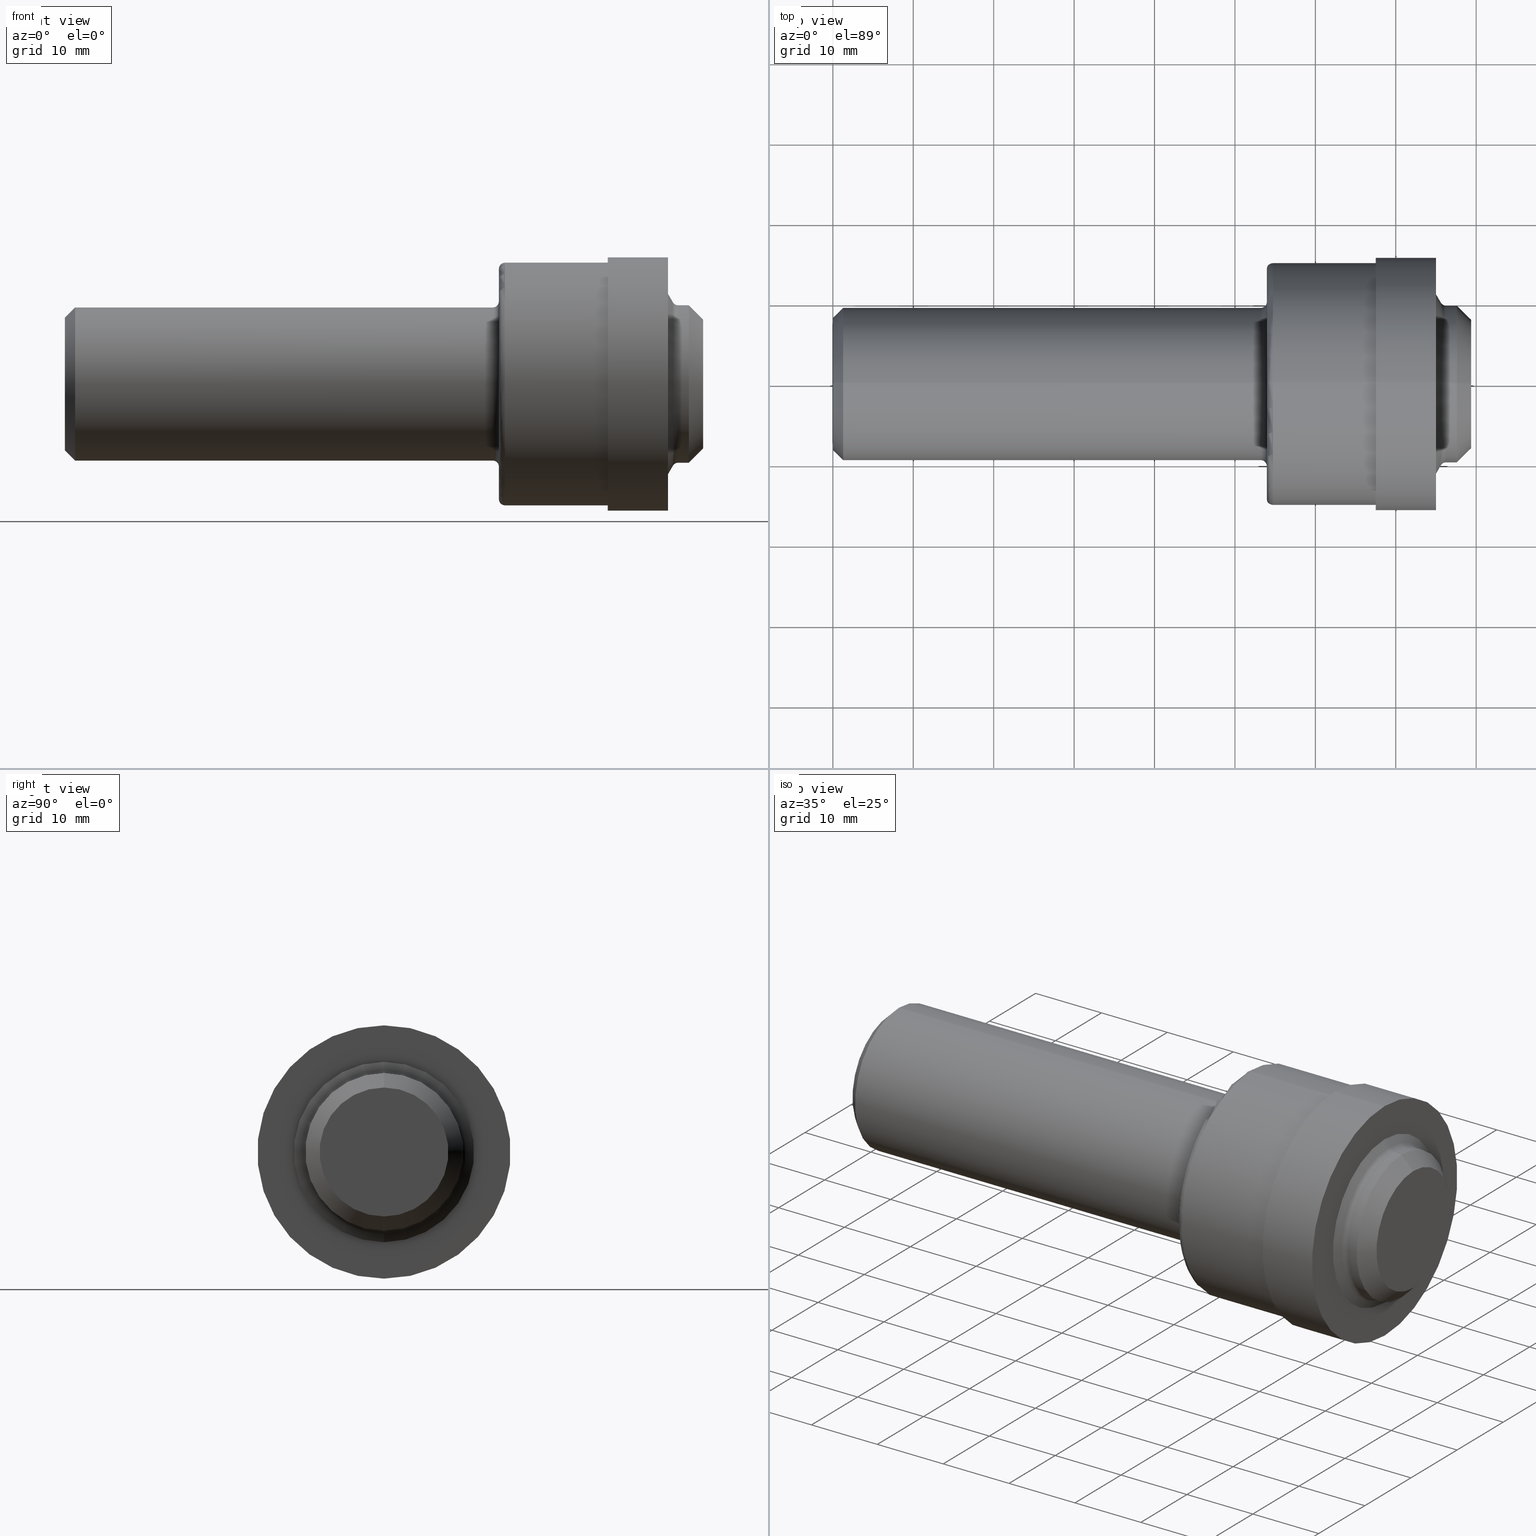
[diagram: canonical four-view strip — front | top / right | iso, engineering-drawing reading convention]
A machine part, canonical four-view strip (front | top / right | iso — engineering-drawing reading convention). The complete STEP part file that produces these views, byte-faithful:
ISO-10303-21;
HEADER;
FILE_DESCRIPTION (( 'STEP AP214' ),
    '1' );
FILE_NAME ('AS5202-08X.STEP',
    '2023-11-10T18:26:39',
    ( '' ),
    ( '' ),
    'SwSTEP 2.0',
    'SolidWorks 2022',
    '' );
FILE_SCHEMA (( 'AUTOMOTIVE_DESIGN' ));
ENDSEC;

DATA;
#1 = DIRECTION ( 'NONE',  ( 0.000000000000000000, 0.000000000000000000, 1.000000000000000000 ) ) ;
#2 = ADVANCED_FACE ( 'NONE', ( #682 ), #261, .T. ) ;
#3 = FACE_OUTER_BOUND ( 'NONE', #114, .T. ) ;
#4 = EDGE_LOOP ( 'NONE', ( #379, #194, #202, #406 ) ) ;
#5 = DIRECTION ( 'NONE',  ( 0.000000000000000000, 0.000000000000000000, 1.000000000000000000 ) ) ;
#6 = CONICAL_SURFACE ( 'NONE', #242, 0.3748500000000000165, 0.7853981633974463916 ) ;
#7 = DIRECTION ( 'NONE',  ( 0.000000000000000000, 0.000000000000000000, 1.000000000000000000 ) ) ;
#8 = DIRECTION ( 'NONE',  ( 1.000000000000000000, 0.000000000000000000, 0.000000000000000000 ) ) ;
#9 = ORIENTED_EDGE ( 'NONE', *, *, #80, .F. ) ;
#10 = DIRECTION ( 'NONE',  ( 0.000000000000000000, 0.000000000000000000, 1.000000000000000000 ) ) ;
#11 = CIRCLE ( 'NONE', #496, 0.02900000000000022352 ) ;
#12 = ADVANCED_FACE ( 'NONE', ( #531 ), #340, .T. ) ;
#13 = DIRECTION ( 'NONE',  ( 1.000000000000000000, 0.000000000000000000, 0.000000000000000000 ) ) ;
#14 = CARTESIAN_POINT ( 'NONE',  ( 2.125000000000000000, 7.090704967063174160E-17, -0.5639999999999999458 ) ) ;
#15 = VERTEX_POINT ( 'NONE', #163 ) ;
#16 = FACE_OUTER_BOUND ( 'NONE', #423, .T. ) ;
#17 = AXIS2_PLACEMENT_3D ( 'NONE', #394, #274, #339 ) ;
#18 = FACE_OUTER_BOUND ( 'NONE', #572, .T. ) ;
#19 = CIRCLE ( 'NONE', #643, 0.4048500000000000432 ) ;
#20 = SURFACE_STYLE_USAGE ( .BOTH. , #192 ) ;
#21 = VERTEX_POINT ( 'NONE', #578 ) ;
#22 = EDGE_CURVE ( 'NONE', #56, #30, #534, .T. ) ;
#23 = VERTEX_POINT ( 'NONE', #107 ) ;
#24 = ORIENTED_EDGE ( 'NONE', *, *, #289, .T. ) ;
#25 = AXIS2_PLACEMENT_3D ( 'NONE', #684, #272, #481 ) ;
#26 = DIRECTION ( 'NONE',  ( 0.000000000000000000, 0.000000000000000000, 1.000000000000000000 ) ) ;
#27 = ORIENTED_EDGE ( 'NONE', *, *, #657, .T. ) ;
#28 = AXIS2_PLACEMENT_3D ( 'NONE', #51, #494, #383 ) ;
#29 = CARTESIAN_POINT ( 'NONE',  ( 2.657999999999999918, 0.000000000000000000, 0.000000000000000000 ) ) ;
#30 = VERTEX_POINT ( 'NONE', #332 ) ;
#31 = CARTESIAN_POINT ( 'NONE',  ( 0.000000000000000000, 0.000000000000000000, 0.000000000000000000 ) ) ;
#32 = EDGE_LOOP ( 'NONE', ( #97, #79, #24, #44 ) ) ;
#33 = STYLED_ITEM ( 'NONE', ( #243 ), #482 ) ;
#34 = DIRECTION ( 'NONE',  ( 0.000000000000000000, 0.000000000000000000, -1.000000000000000000 ) ) ;
#35 = ORIENTED_EDGE ( 'NONE', *, *, #554, .T. ) ;
#36 = PRODUCT_DEFINITION_FORMATION_WITH_SPECIFIED_SOURCE ( 'ANY', '', #532, .NOT_KNOWN. ) ;
#37 = ADVANCED_FACE ( 'NONE', ( #170 ), #182, .T. ) ;
#38 = DIRECTION ( 'NONE',  ( 1.000000000000000000, 0.000000000000000000, 0.000000000000000000 ) ) ;
#39 = ORIENTED_EDGE ( 'NONE', *, *, #178, .F. ) ;
#40 = DIRECTION ( 'NONE',  ( 0.000000000000000000, 0.000000000000000000, 1.000000000000000000 ) ) ;
#41 = FACE_OUTER_BOUND ( 'NONE', #538, .T. ) ;
#42 = CARTESIAN_POINT ( 'NONE',  ( 2.154999999999999805, 0.000000000000000000, 0.000000000000000000 ) ) ;
#43 = CARTESIAN_POINT ( 'NONE',  ( 0.05000000000000000278, 0.000000000000000000, 0.000000000000000000 ) ) ;
#44 = ORIENTED_EDGE ( 'NONE', *, *, #69, .T. ) ;
#45 = CIRCLE ( 'NONE', #295, 0.3248500000000002497 ) ;
#46 = CARTESIAN_POINT ( 'NONE',  ( 2.094999999999999751, 0.000000000000000000, 0.4048500000000000432 ) ) ;
#47 = EDGE_CURVE ( 'NONE', #457, #152, #450, .T. ) ;
#48 = ORIENTED_EDGE ( 'NONE', *, *, #354, .F. ) ;
#49 = CIRCLE ( 'NONE', #146, 0.3748500000000000165 ) ;
#50 = FACE_BOUND ( 'NONE', #89, .T. ) ;
#51 = CARTESIAN_POINT ( 'NONE',  ( 2.094999999999999751, 0.000000000000000000, 0.000000000000000000 ) ) ;
#52 = VERTEX_POINT ( 'NONE', #546 ) ;
#53 = FACE_OUTER_BOUND ( 'NONE', #454, .T. ) ;
#54 = DIRECTION ( 'NONE',  ( -1.000000000000000000, -0.000000000000000000, -0.000000000000000000 ) ) ;
#55 = DIRECTION ( 'NONE',  ( 0.000000000000000000, 0.000000000000000000, 1.000000000000000000 ) ) ;
#56 = VERTEX_POINT ( 'NONE', #446 ) ;
#57 = DIRECTION ( 'NONE',  ( 0.000000000000000000, -1.000000000000000000, 0.000000000000000000 ) ) ;
#58 =( GEOMETRIC_REPRESENTATION_CONTEXT ( 3 ) GLOBAL_UNCERTAINTY_ASSIGNED_CONTEXT ( ( #315 ) ) GLOBAL_UNIT_ASSIGNED_CONTEXT ( ( #82, #293, #518 ) ) REPRESENTATION_CONTEXT ( 'NONE', 'WORKASPACE' ) );
#59 = AXIS2_PLACEMENT_3D ( 'NONE', #645, #8, #123 ) ;
#60 = DIRECTION ( 'NONE',  ( 0.000000000000000000, 0.000000000000000000, 1.000000000000000000 ) ) ;
#61 = ORIENTED_EDGE ( 'NONE', *, *, #461, .T. ) ;
#62 = CARTESIAN_POINT ( 'NONE',  ( 2.125000000000000000, 0.000000000000000000, 0.000000000000000000 ) ) ;
#63 = DIRECTION ( 'NONE',  ( -1.000000000000000000, -0.000000000000000000, -0.000000000000000000 ) ) ;
#64 = LINE ( 'NONE', #588, #470 ) ;
#65 = ORIENTED_EDGE ( 'NONE', *, *, #640, .F. ) ;
#66 = DIRECTION ( 'NONE',  ( 0.000000000000000000, 0.000000000000000000, 1.000000000000000000 ) ) ;
#67 = DIRECTION ( 'NONE',  ( 0.000000000000000000, 0.000000000000000000, 1.000000000000000000 ) ) ;
#68 = ORIENTED_EDGE ( 'NONE', *, *, #181, .T. ) ;
#69 = EDGE_CURVE ( 'NONE', #140, #525, #644, .T. ) ;
#70 = COLOUR_RGB ( '',0.7529411764705882248, 0.7529411764705882248, 0.7529411764705882248 ) ;
#71 = DIRECTION ( 'NONE',  ( -0.000000000000000000, 0.000000000000000000, 1.000000000000000000 ) ) ;
#72 = EDGE_CURVE ( 'NONE', #148, #23, #668, .T. ) ;
#73 = ORIENTED_EDGE ( 'NONE', *, *, #403, .F. ) ;
#74 = CARTESIAN_POINT ( 'NONE',  ( 2.657999999999999918, 0.000000000000000000, 0.6199999999999999956 ) ) ;
#75 = STYLED_ITEM ( 'NONE', ( #412 ), #245 ) ;
#76 = ORIENTED_EDGE ( 'NONE', *, *, #341, .T. ) ;
#77 = ADVANCED_FACE ( 'NONE', ( #3 ), #121, .T. ) ;
#78 = FACE_BOUND ( 'NONE', #241, .T. ) ;
#79 = ORIENTED_EDGE ( 'NONE', *, *, #72, .F. ) ;
#80 = EDGE_CURVE ( 'NONE', #664, #459, #106, .T. ) ;
#81 = VECTOR ( 'NONE', #116, 39.37007874015748143 ) ;
#82 =( CONVERSION_BASED_UNIT ( 'INCH', #561 ) LENGTH_UNIT ( ) NAMED_UNIT ( #269 ) );
#83 = VERTEX_POINT ( 'NONE', #399 ) ;
#84 = CIRCLE ( 'NONE', #189, 0.3855999999999999983 ) ;
#85 = APPLICATION_CONTEXT ( 'automotive_design' ) ;
#86 = PRODUCT_CONTEXT ( 'NONE', #430, 'mechanical' ) ;
#87 = VERTEX_POINT ( 'NONE', #442 ) ;
#88 = DIRECTION ( 'NONE',  ( -1.000000000000000000, -0.000000000000000000, -0.000000000000000000 ) ) ;
#89 = EDGE_LOOP ( 'NONE', ( #371, #512 ) ) ;
#90 = SURFACE_STYLE_FILL_AREA ( #259 ) ;
#91 = CIRCLE ( 'NONE', #675, 0.4000999999999999002 ) ;
#92 = CARTESIAN_POINT ( 'NONE',  ( 2.657999999999999918, 0.000000000000000000, 0.000000000000000000 ) ) ;
#93 = ORIENTED_EDGE ( 'NONE', *, *, #279, .T. ) ;
#94 = CLOSED_SHELL ( 'NONE', ( #449, #100, #128, #77, #522, #586, #12, #654, #530, #137, #673, #693, #377, #258, #149, #619, #164, #683, #381, #2, #327, #609, #37, #663, #115 ) ) ;
#95 =( NAMED_UNIT ( * ) PLANE_ANGLE_UNIT ( ) SI_UNIT ( $, .RADIAN. ) );
#96 = CYLINDRICAL_SURFACE ( 'NONE', #155, 0.5939999999999999725 ) ;
#97 = ORIENTED_EDGE ( 'NONE', *, *, #392, .F. ) ;
#98 = AXIS2_PLACEMENT_3D ( 'NONE', #519, #606, #460 ) ;
#99 = DIRECTION ( 'NONE',  ( 0.000000000000000000, 0.000000000000000000, 1.000000000000000000 ) ) ;
#100 = ADVANCED_FACE ( 'NONE', ( #658 ), #592, .T. ) ;
#101 = DIRECTION ( 'NONE',  ( -1.000000000000000000, -0.000000000000000000, -0.000000000000000000 ) ) ;
#102 = VERTEX_POINT ( 'NONE', #336 ) ;
#103 = CARTESIAN_POINT ( 'NONE',  ( 2.154999999999999805, 0.000000000000000000, 0.5939999999999999725 ) ) ;
#104 = EDGE_CURVE ( 'NONE', #400, #388, #443, .T. ) ;
#105 = ORIENTED_EDGE ( 'NONE', *, *, #630, .F. ) ;
#106 = CIRCLE ( 'NONE', #350, 0.02900000000000022352 ) ;
#107 = CARTESIAN_POINT ( 'NONE',  ( 2.094999999999999751, 4.774285546475956938E-17, -0.3748500000000000165 ) ) ;
#108 = ORIENTED_EDGE ( 'NONE', *, *, #568, .T. ) ;
#109 = DIRECTION ( 'NONE',  ( 0.000000000000000000, 0.000000000000000000, 1.000000000000000000 ) ) ;
#110 = AXIS2_PLACEMENT_3D ( 'NONE', #629, #478, #153 ) ;
#111 = DIRECTION ( 'NONE',  ( -1.000000000000000000, -0.000000000000000000, -0.000000000000000000 ) ) ;
#112 = DIRECTION ( 'NONE',  ( 0.000000000000000000, 0.000000000000000000, 1.000000000000000000 ) ) ;
#113 = EDGE_CURVE ( 'NONE', #21, #664, #678, .T. ) ;
#114 = EDGE_LOOP ( 'NONE', ( #364, #614, #589, #324 ) ) ;
#115 = ADVANCED_FACE ( 'NONE', ( #490 ), #226, .F. ) ;
#116 = DIRECTION ( 'NONE',  ( -1.000000000000000000, -0.000000000000000000, -0.000000000000000000 ) ) ;
#117 = CARTESIAN_POINT ( 'NONE',  ( 0.000000000000000000, 0.000000000000000000, 0.000000000000000000 ) ) ;
#118 = EDGE_LOOP ( 'NONE', ( #298, #603, #570, #183 ) ) ;
#119 = EDGE_CURVE ( 'NONE', #208, #144, #64, .T. ) ;
#120 = CARTESIAN_POINT ( 'NONE',  ( 2.154999999999999805, 7.274401986935277967E-17, -0.5939999999999999725 ) ) ;
#121 = TOROIDAL_SURFACE ( 'NONE', #413, 0.5639999999999999458, 0.02999999999999998848 ) ;
#122 = DIRECTION ( 'NONE',  ( -1.000000000000000000, -0.000000000000000000, -0.000000000000000000 ) ) ;
#123 = DIRECTION ( 'NONE',  ( 0.000000000000000000, 0.000000000000000000, -1.000000000000000000 ) ) ;
#124 = AXIS2_PLACEMENT_3D ( 'NONE', #46, #57, #590 ) ;
#125 = SURFACE_STYLE_FILL_AREA ( #660 ) ;
#126 = CARTESIAN_POINT ( 'NONE',  ( 0.05000000000000000278, 0.000000000000000000, 0.3748500000000000165 ) ) ;
#127 = ORIENTED_EDGE ( 'NONE', *, *, #422, .T. ) ;
#128 = ADVANCED_FACE ( 'NONE', ( #502 ), #173, .F. ) ;
#129 =( NAMED_UNIT ( * ) PLANE_ANGLE_UNIT ( ) SI_UNIT ( $, .RADIAN. ) );
#130 = VERTEX_POINT ( 'NONE', #14 ) ;
#131 = PRODUCT_RELATED_PRODUCT_CATEGORY ( 'part', '', ( #532 ) ) ;
#132 = MECHANICAL_DESIGN_GEOMETRIC_PRESENTATION_REPRESENTATION (  '', ( #33 ), #271 ) ;
#133 = DIRECTION ( 'NONE',  ( -1.000000000000000000, 0.000000000000000000, -0.000000000000000000 ) ) ;
#134 = ORIENTED_EDGE ( 'NONE', *, *, #437, .F. ) ;
#135 = DIRECTION ( 'NONE',  ( 0.000000000000000000, 0.000000000000000000, -1.000000000000000000 ) ) ;
#136 = EDGE_LOOP ( 'NONE', ( #265, #108, #679, #105 ) ) ;
#137 = ADVANCED_FACE ( 'NONE', ( #18 ), #551, .T. ) ;
#138 = DIRECTION ( 'NONE',  ( -1.000000000000000000, -0.000000000000000000, -0.000000000000000000 ) ) ;
#139 = CIRCLE ( 'NONE', #17, 0.02999999999999995379 ) ;
#140 = VERTEX_POINT ( 'NONE', #600 ) ;
#141 = AXIS2_PLACEMENT_3D ( 'NONE', #436, #591, #542 ) ;
#142 = CARTESIAN_POINT ( 'NONE',  ( 0.000000000000000000, 0.000000000000000000, 0.000000000000000000 ) ) ;
#143 = CARTESIAN_POINT ( 'NONE',  ( 3.055000000000000160, 0.000000000000000000, 0.3855999999999999983 ) ) ;
#144 = VERTEX_POINT ( 'NONE', #126 ) ;
#145 = APPLICATION_PROTOCOL_DEFINITION ( 'draft international standard', 'automotive_design', 1998, #85 ) ;
#146 = AXIS2_PLACEMENT_3D ( 'NONE', #585, #579, #10 ) ;
#147 = DIRECTION ( 'NONE',  ( -1.000000000000000000, -0.000000000000000000, -0.000000000000000000 ) ) ;
#148 = VERTEX_POINT ( 'NONE', #345 ) ;
#149 = ADVANCED_FACE ( 'NONE', ( #555 ), #219, .T. ) ;
#150 = DIRECTION ( 'NONE',  ( 0.000000000000000000, 0.000000000000000000, 1.000000000000000000 ) ) ;
#151 = DIRECTION ( 'NONE',  ( 0.000000000000000000, 0.000000000000000000, 1.000000000000000000 ) ) ;
#152 = VERTEX_POINT ( 'NONE', #402 ) ;
#153 = DIRECTION ( 'NONE',  ( 0.000000000000000000, 0.000000000000000000, 1.000000000000000000 ) ) ;
#154 = UNCERTAINTY_MEASURE_WITH_UNIT (LENGTH_MEASURE( 1.000000000000000082E-05 ), #455, 'distance_accuracy_value', 'NONE');
#155 = AXIS2_PLACEMENT_3D ( 'NONE', #577, #101, #151 ) ;
#156 = LINE ( 'NONE', #216, #250 ) ;
#157 = ORIENTED_EDGE ( 'NONE', *, *, #224, .T. ) ;
#158 = AXIS2_PLACEMENT_3D ( 'NONE', #397, #233, #67 ) ;
#159 = CIRCLE ( 'NONE', #631, 0.5939999999999999725 ) ;
#160 = EDGE_CURVE ( 'NONE', #388, #130, #541, .T. ) ;
#161 = CARTESIAN_POINT ( 'NONE',  ( 0.000000000000000000, 0.000000000000000000, 0.000000000000000000 ) ) ;
#162 = DIRECTION ( 'NONE',  ( -1.000000000000000000, -0.000000000000000000, -0.000000000000000000 ) ) ;
#163 = CARTESIAN_POINT ( 'NONE',  ( 2.952999999999999847, 0.000000000000000000, 0.4415000000000000036 ) ) ;
#164 = ADVANCED_FACE ( 'NONE', ( #199 ), #612, .T. ) ;
#165 = CARTESIAN_POINT ( 'NONE',  ( 2.976902301144449758, 4.899811843388558823E-17, -0.4000999999999999002 ) ) ;
#166 = DIRECTION ( 'NONE',  ( -1.000000000000000000, -0.000000000000000000, -0.000000000000000000 ) ) ;
#167 = ORIENTED_EDGE ( 'NONE', *, *, #483, .F. ) ;
#168 = LINE ( 'NONE', #380, #464 ) ;
#169 = FACE_OUTER_BOUND ( 'NONE', #523, .T. ) ;
#170 = FACE_OUTER_BOUND ( 'NONE', #300, .T. ) ;
#171 = AXIS2_PLACEMENT_3D ( 'NONE', #448, #166, #445 ) ;
#172 = CARTESIAN_POINT ( 'NONE',  ( 0.000000000000000000, 0.000000000000000000, 0.000000000000000000 ) ) ;
#173 = TOROIDAL_SURFACE ( 'NONE', #312, 0.4048500000000000432, 0.02999999999999998848 ) ;
#174 = FACE_OUTER_BOUND ( 'NONE', #32, .T. ) ;
#175 = DIRECTION ( 'NONE',  ( 0.000000000000000000, 0.000000000000000000, 1.000000000000000000 ) ) ;
#176 = EDGE_LOOP ( 'NONE', ( #427, #307, #27, #670 ) ) ;
#177 = DIRECTION ( 'NONE',  ( 0.000000000000000000, 0.000000000000000000, -1.000000000000000000 ) ) ;
#178 = EDGE_CURVE ( 'NONE', #633, #87, #623, .T. ) ;
#179 = AXIS2_PLACEMENT_3D ( 'NONE', #142, #310, #99 ) ;
#180 = LINE ( 'NONE', #655, #515 ) ;
#181 = EDGE_CURVE ( 'NONE', #56, #198, #318, .T. ) ;
#182 = CYLINDRICAL_SURFACE ( 'NONE', #297, 0.3748500000000000165 ) ;
#183 = ORIENTED_EDGE ( 'NONE', *, *, #209, .F. ) ;
#184 = CYLINDRICAL_SURFACE ( 'NONE', #615, 0.5939999999999999725 ) ;
#185 = DIRECTION ( 'NONE',  ( 0.000000000000000000, 0.000000000000000000, -1.000000000000000000 ) ) ;
#186 = DIRECTION ( 'NONE',  ( 0.000000000000000000, 0.000000000000000000, 1.000000000000000000 ) ) ;
#187 = ORIENTED_EDGE ( 'NONE', *, *, #508, .T. ) ;
#188 = CONICAL_SURFACE ( 'NONE', #562, 0.3155999999999998806, 0.7853981633974482790 ) ;
#189 = AXIS2_PLACEMENT_3D ( 'NONE', #435, #642, #638 ) ;
#190 = DIRECTION ( 'NONE',  ( 0.000000000000000000, 0.000000000000000000, 1.000000000000000000 ) ) ;
#191 = EDGE_CURVE ( 'NONE', #667, #400, #308, .T. ) ;
#192 = SURFACE_SIDE_STYLE ('',( #125 ) ) ;
#193 = CARTESIAN_POINT ( 'NONE',  ( 2.154999999999999805, 6.907007947191071586E-17, -0.5639999999999999458 ) ) ;
#194 = ORIENTED_EDGE ( 'NONE', *, *, #513, .T. ) ;
#195 = CIRCLE ( 'NONE', #595, 0.3155999999999998806 ) ;
#196 =( LENGTH_UNIT ( ) NAMED_UNIT ( * ) SI_UNIT ( $, .METRE. ) );
#197 = CIRCLE ( 'NONE', #346, 0.3248500000000002497 ) ;
#198 = VERTEX_POINT ( 'NONE', #680 ) ;
#199 = FACE_OUTER_BOUND ( 'NONE', #618, .T. ) ;
#200 = PLANE ( 'NONE',  #369 ) ;
#201 = EDGE_LOOP ( 'NONE', ( #473, #352 ) ) ;
#202 = ORIENTED_EDGE ( 'NONE', *, *, #461, .F. ) ;
#203 =( CONVERSION_BASED_UNIT ( 'INCH', #255 ) LENGTH_UNIT ( ) NAMED_UNIT ( #416 ) );
#204 = DIRECTION ( 'NONE',  ( 0.000000000000000000, 0.000000000000000000, 1.000000000000000000 ) ) ;
#205 = VECTOR ( 'NONE', #507, 39.37007874015748854 ) ;
#206 = ORIENTED_EDGE ( 'NONE', *, *, #113, .F. ) ;
#207 = DIRECTION ( 'NONE',  ( 0.000000000000000000, -1.000000000000000000, 0.000000000000000000 ) ) ;
#208 = VERTEX_POINT ( 'NONE', #429 ) ;
#209 = EDGE_CURVE ( 'NONE', #130, #651, #587, .T. ) ;
#210 = CARTESIAN_POINT ( 'NONE',  ( 0.000000000000000000, 7.274401986935277967E-17, -0.5939999999999999725 ) ) ;
#211 = CIRCLE ( 'NONE', #480, 0.6199999999999999956 ) ;
#212 = AXIS2_PLACEMENT_3D ( 'NONE', #649, #639, #583 ) ;
#213 = DIRECTION ( 'NONE',  ( 0.000000000000000000, 0.000000000000000000, 1.000000000000000000 ) ) ;
#214 = DIRECTION ( 'NONE',  ( -1.000000000000000000, -0.000000000000000000, -0.000000000000000000 ) ) ;
#215 = LINE ( 'NONE', #210, #648 ) ;
#216 = CARTESIAN_POINT ( 'NONE',  ( 0.000000000000000000, 4.722238057512192385E-17, -0.3855999999999998318 ) ) ;
#217 = CIRCLE ( 'NONE', #456, 0.5639999999999999458 ) ;
#218 = ORIENTED_EDGE ( 'NONE', *, *, #178, .T. ) ;
#219 = CONICAL_SURFACE ( 'NONE', #98, 0.4000999999999999002, 1.047197551196613396 ) ;
#220 = DIRECTION ( 'NONE',  ( 0.000000000000000000, 0.000000000000000000, 1.000000000000000000 ) ) ;
#221 = CARTESIAN_POINT ( 'NONE',  ( 2.952999999999999847, 7.592810154713589096E-17, -0.6199999999999999956 ) ) ;
#222 = CARTESIAN_POINT ( 'NONE',  ( 0.000000000000000000, 0.000000000000000000, 0.000000000000000000 ) ) ;
#223 = DIRECTION ( 'NONE',  ( -1.000000000000000000, -0.000000000000000000, -0.000000000000000000 ) ) ;
#224 = EDGE_CURVE ( 'NONE', #290, #388, #215, .T. ) ;
#225 = CARTESIAN_POINT ( 'NONE',  ( 2.154999999999999805, 0.000000000000000000, 0.000000000000000000 ) ) ;
#226 = PLANE ( 'NONE',  #59 ) ;
#227 = AXIS2_PLACEMENT_3D ( 'NONE', #620, #147, #363 ) ;
#228 = ORIENTED_EDGE ( 'NONE', *, *, #80, .T. ) ;
#229 = DIRECTION ( 'NONE',  ( -1.000000000000000000, -0.000000000000000000, -0.000000000000000000 ) ) ;
#230 = DIRECTION ( 'NONE',  ( -1.000000000000000000, -0.000000000000000000, -0.000000000000000000 ) ) ;
#231 = CARTESIAN_POINT ( 'NONE',  ( 3.125000000000000000, 0.000000000000000000, 0.3155999999999998806 ) ) ;
#232 = PLANE ( 'NONE',  #141 ) ;
#233 = DIRECTION ( 'NONE',  ( -1.000000000000000000, -0.000000000000000000, -0.000000000000000000 ) ) ;
#234 = EDGE_CURVE ( 'NONE', #102, #144, #511, .T. ) ;
#235 = CARTESIAN_POINT ( 'NONE',  ( 2.125000000000000000, 0.5639999999999999458, 0.000000000000000000 ) ) ;
#236 = EDGE_CURVE ( 'NONE', #677, #87, #329, .T. ) ;
#237 = CIRCLE ( 'NONE', #409, 0.5939999999999999725 ) ;
#238 = DIRECTION ( 'NONE',  ( -1.000000000000000000, -0.000000000000000000, -0.000000000000000000 ) ) ;
#239 = CARTESIAN_POINT ( 'NONE',  ( 3.125000000000000000, 0.000000000000000000, 0.000000000000000000 ) ) ;
#240 = DIRECTION ( 'NONE',  ( 0.000000000000000000, -1.224646799147352221E-16, 1.000000000000000000 ) ) ;
#241 = EDGE_LOOP ( 'NONE', ( #544, #338 ) ) ;
#242 = AXIS2_PLACEMENT_3D ( 'NONE', #489, #13, #185 ) ;
#243 = PRESENTATION_STYLE_ASSIGNMENT (( #20 ) ) ;
#244 = ORIENTED_EDGE ( 'NONE', *, *, #576, .F. ) ;
#245 = MANIFOLD_SOLID_BREP ( 'Body', #94 ) ;
#246 = AXIS2_PLACEMENT_3D ( 'NONE', #320, #415, #40 ) ;
#247 = ORIENTED_EDGE ( 'NONE', *, *, #224, .F. ) ;
#248 = EDGE_CURVE ( 'NONE', #30, #457, #601, .T. ) ;
#249 = ORIENTED_EDGE ( 'NONE', *, *, #289, .F. ) ;
#250 = VECTOR ( 'NONE', #370, 39.37007874015748143 ) ;
#251 = DIRECTION ( 'NONE',  ( 0.000000000000000000, 0.000000000000000000, 1.000000000000000000 ) ) ;
#252 = EDGE_LOOP ( 'NONE', ( #625, #68, #319, #520 ) ) ;
#253 = DIRECTION ( 'NONE',  ( 0.000000000000000000, 0.000000000000000000, 1.000000000000000000 ) ) ;
#254 = ORIENTED_EDGE ( 'NONE', *, *, #640, .T. ) ;
#255 = LENGTH_MEASURE_WITH_UNIT ( LENGTH_MEASURE( 0.02539999999999999897 ), #421 );
#256 = CARTESIAN_POINT ( 'NONE',  ( 2.125000000000000000, 4.957982566348060745E-17, -0.4048500000000000432 ) ) ;
#257 = ORIENTED_EDGE ( 'NONE', *, *, #652, .F. ) ;
#258 = ADVANCED_FACE ( 'NONE', ( #325 ), #691, .F. ) ;
#259 = FILL_AREA_STYLE ('',( #365 ) ) ;
#260 = DIRECTION ( 'NONE',  ( 0.000000000000000000, 0.000000000000000000, -1.000000000000000000 ) ) ;
#261 = TOROIDAL_SURFACE ( 'NONE', #463, 0.5639999999999999458, 0.02999999999999998848 ) ;
#262 = ORIENTED_EDGE ( 'NONE', *, *, #334, .T. ) ;
#263 = CARTESIAN_POINT ( 'NONE',  ( 0.000000000000000000, 7.592810154713589096E-17, -0.6199999999999999956 ) ) ;
#264 = CARTESIAN_POINT ( 'NONE',  ( 2.952999999999999847, 0.000000000000000000, 0.000000000000000000 ) ) ;
#265 = ORIENTED_EDGE ( 'NONE', *, *, #341, .F. ) ;
#266 = DIRECTION ( 'NONE',  ( -1.000000000000000000, -0.000000000000000000, -0.000000000000000000 ) ) ;
#267 = CARTESIAN_POINT ( 'NONE',  ( 0.000000000000000000, 0.000000000000000000, 0.000000000000000000 ) ) ;
#268 = DIRECTION ( 'NONE',  ( -1.000000000000000000, -0.000000000000000000, -0.000000000000000000 ) ) ;
#269 = DIMENSIONAL_EXPONENTS ( 1.000000000000000000, 0.000000000000000000, 0.000000000000000000, 0.000000000000000000, 0.000000000000000000, 0.000000000000000000, 0.000000000000000000 ) ;
#270 = DIRECTION ( 'NONE',  ( -1.000000000000000000, -0.000000000000000000, -0.000000000000000000 ) ) ;
#271 =( GEOMETRIC_REPRESENTATION_CONTEXT ( 3 ) GLOBAL_UNCERTAINTY_ASSIGNED_CONTEXT ( ( #154 ) ) GLOBAL_UNIT_ASSIGNED_CONTEXT ( ( #455, #129, #605 ) ) REPRESENTATION_CONTEXT ( 'NONE', 'WORKASPACE' ) );
#272 = DIRECTION ( 'NONE',  ( -1.000000000000000000, -0.000000000000000000, -0.000000000000000000 ) ) ;
#273 = ORIENTED_EDGE ( 'NONE', *, *, #598, .T. ) ;
#274 = DIRECTION ( 'NONE',  ( -0.000000000000000000, 1.000000000000000000, 1.224646799147353207E-16 ) ) ;
#275 = CYLINDRICAL_SURFACE ( 'NONE', #665, 0.6199999999999999956 ) ;
#276 = AXIS2_PLACEMENT_3D ( 'NONE', #564, #88, #535 ) ;
#277 = ORIENTED_EDGE ( 'NONE', *, *, #434, .F. ) ;
#278 = FACE_OUTER_BOUND ( 'NONE', #471, .T. ) ;
#279 = EDGE_CURVE ( 'NONE', #21, #152, #11, .T. ) ;
#280 = FACE_OUTER_BOUND ( 'NONE', #176, .T. ) ;
#281 = DIRECTION ( 'NONE',  ( 0.000000000000000000, 0.000000000000000000, 1.000000000000000000 ) ) ;
#282 = ORIENTED_EDGE ( 'NONE', *, *, #568, .F. ) ;
#283 = CARTESIAN_POINT ( 'NONE',  ( 2.094999999999999751, 0.000000000000000000, 0.000000000000000000 ) ) ;
#284 = LINE ( 'NONE', #231, #540 ) ;
#285 = AXIS2_PLACEMENT_3D ( 'NONE', #685, #214, #322 ) ;
#286 = FACE_OUTER_BOUND ( 'NONE', #305, .T. ) ;
#287 = DIRECTION ( 'NONE',  ( -1.000000000000000000, -0.000000000000000000, -0.000000000000000000 ) ) ;
#288 = CIRCLE ( 'NONE', #124, 0.02999999999999995379 ) ;
#289 = EDGE_CURVE ( 'NONE', #148, #140, #288, .T. ) ;
#290 = VERTEX_POINT ( 'NONE', #545 ) ;
#291 = DIRECTION ( 'NONE',  ( -1.000000000000000000, -0.000000000000000000, -0.000000000000000000 ) ) ;
#292 = DIRECTION ( 'NONE',  ( 0.7071067811865489050, 8.659560562354915602E-17, 0.7071067811865461294 ) ) ;
#293 =( NAMED_UNIT ( * ) PLANE_ANGLE_UNIT ( ) SI_UNIT ( $, .RADIAN. ) );
#294 = CARTESIAN_POINT ( 'NONE',  ( 2.094999999999999751, 0.000000000000000000, 0.000000000000000000 ) ) ;
#295 = AXIS2_PLACEMENT_3D ( 'NONE', #31, #374, #626 ) ;
#296 = AXIS2_PLACEMENT_3D ( 'NONE', #161, #253, #316 ) ;
#297 = AXIS2_PLACEMENT_3D ( 'NONE', #222, #328, #112 ) ;
#298 = ORIENTED_EDGE ( 'NONE', *, *, #160, .F. ) ;
#299 = PRESENTATION_LAYER_ASSIGNMENT (  '', '', ( #75 ) ) ;
#300 = EDGE_LOOP ( 'NONE', ( #257, #510, #607, #637 ) ) ;
#301 = AXIS2_PLACEMENT_3D ( 'NONE', #594, #389, #444 ) ;
#302 = FACE_OUTER_BOUND ( 'NONE', #351, .T. ) ;
#303 = ORIENTED_EDGE ( 'NONE', *, *, #191, .F. ) ;
#304 = CIRCLE ( 'NONE', #469, 0.6199999999999999956 ) ;
#305 = EDGE_LOOP ( 'NONE', ( #167, #244 ) ) ;
#306 = CARTESIAN_POINT ( 'NONE',  ( 3.002017037854198822, 4.722238057512191153E-17, -0.3855999999999997763 ) ) ;
#307 = ORIENTED_EDGE ( 'NONE', *, *, #508, .F. ) ;
#308 = LINE ( 'NONE', #314, #622 ) ;
#309 = ORIENTED_EDGE ( 'NONE', *, *, #554, .F. ) ;
#310 = DIRECTION ( 'NONE',  ( -1.000000000000000000, -0.000000000000000000, -0.000000000000000000 ) ) ;
#311 = AXIS2_PLACEMENT_3D ( 'NONE', #267, #366, #204 ) ;
#312 = AXIS2_PLACEMENT_3D ( 'NONE', #294, #287, #498 ) ;
#313 = EDGE_LOOP ( 'NONE', ( #347, #76, #65, #134 ) ) ;
#314 = CARTESIAN_POINT ( 'NONE',  ( 0.000000000000000000, 0.000000000000000000, 0.5939999999999999725 ) ) ;
#315 = UNCERTAINTY_MEASURE_WITH_UNIT (LENGTH_MEASURE( 1.000000000000000082E-05 ), #82, 'distance_accuracy_value', 'NONE');
#316 = DIRECTION ( 'NONE',  ( 1.000000000000000000, 0.000000000000000000, 0.000000000000000000 ) ) ;
#317 = DIRECTION ( 'NONE',  ( 0.000000000000000000, 0.000000000000000000, 1.000000000000000000 ) ) ;
#318 = CIRCLE ( 'NONE', #246, 0.3155999999999998806 ) ;
#319 = ORIENTED_EDGE ( 'NONE', *, *, #354, .T. ) ;
#320 = CARTESIAN_POINT ( 'NONE',  ( 3.125000000000000000, 0.000000000000000000, 0.000000000000000000 ) ) ;
#321 = CARTESIAN_POINT ( 'NONE',  ( 0.000000000000000000, 0.000000000000000000, 0.000000000000000000 ) ) ;
#322 = DIRECTION ( 'NONE',  ( 0.000000000000000000, 0.000000000000000000, 1.000000000000000000 ) ) ;
#323 = AXIS2_PLACEMENT_3D ( 'NONE', #521, #38, #260 ) ;
#324 = ORIENTED_EDGE ( 'NONE', *, *, #479, .F. ) ;
#325 = FACE_OUTER_BOUND ( 'NONE', #487, .T. ) ;
#326 = CARTESIAN_POINT ( 'NONE',  ( 2.952999999999999847, 0.000000000000000000, 0.000000000000000000 ) ) ;
#327 = ADVANCED_FACE ( 'NONE', ( #50, #16 ), #385, .F. ) ;
#328 = DIRECTION ( 'NONE',  ( -1.000000000000000000, -0.000000000000000000, -0.000000000000000000 ) ) ;
#329 = CIRCLE ( 'NONE', #417, 0.6199999999999999956 ) ;
#330 = CYLINDRICAL_SURFACE ( 'NONE', #301, 0.3855999999999998318 ) ;
#331 = CARTESIAN_POINT ( 'NONE',  ( 2.952999999999999847, 0.000000000000000000, 0.000000000000000000 ) ) ;
#332 = CARTESIAN_POINT ( 'NONE',  ( 3.055000000000000160, 4.722238057512193618E-17, -0.3855999999999999983 ) ) ;
#333 = LINE ( 'NONE', #165, #361 ) ;
#334 = EDGE_CURVE ( 'NONE', #651, #130, #217, .T. ) ;
#335 = LINE ( 'NONE', #580, #337 ) ;
#336 = CARTESIAN_POINT ( 'NONE',  ( 0.05000000000000000278, 4.590588526603853748E-17, -0.3748500000000000165 ) ) ;
#337 = VECTOR ( 'NONE', #54, 39.37007874015748143 ) ;
#338 = ORIENTED_EDGE ( 'NONE', *, *, #401, .F. ) ;
#339 = DIRECTION ( 'NONE',  ( 0.000000000000000000, -1.224646799147354933E-16, 1.000000000000000000 ) ) ;
#340 = CONICAL_SURFACE ( 'NONE', #285, 0.4000999999999999002, 1.047197551196613396 ) ;
#341 = EDGE_CURVE ( 'NONE', #664, #557, #333, .T. ) ;
#342 = DIRECTION ( 'NONE',  ( 0.7071067811865489050, 0.000000000000000000, -0.7071067811865461294 ) ) ;
#343 = CARTESIAN_POINT ( 'NONE',  ( 3.125000000000000000, 3.864985298109045189E-17, -0.3155999999999998806 ) ) ;
#344 =( LENGTH_UNIT ( ) NAMED_UNIT ( * ) SI_UNIT ( $, .METRE. ) );
#345 = CARTESIAN_POINT ( 'NONE',  ( 2.094999999999999751, 0.000000000000000000, 0.3748500000000000165 ) ) ;
#346 = AXIS2_PLACEMENT_3D ( 'NONE', #321, #432, #533 ) ;
#347 = ORIENTED_EDGE ( 'NONE', *, *, #113, .T. ) ;
#348 = CIRCLE ( 'NONE', #171, 0.4415000000000000036 ) ;
#349 = EDGE_CURVE ( 'NONE', #23, #148, #49, .T. ) ;
#350 = AXIS2_PLACEMENT_3D ( 'NONE', #391, #656, #553 ) ;
#351 = EDGE_LOOP ( 'NONE', ( #433, #359 ) ) ;
#352 = ORIENTED_EDGE ( 'NONE', *, *, #181, .F. ) ;
#353 = FACE_OUTER_BOUND ( 'NONE', #201, .T. ) ;
#354 = EDGE_CURVE ( 'NONE', #198, #457, #284, .T. ) ;
#355 = EDGE_LOOP ( 'NONE', ( #282, #228, #35, #563 ) ) ;
#356 = CONICAL_SURFACE ( 'NONE', #323, 0.3748500000000000165, 0.7853981633974463916 ) ;
#357 = DIRECTION ( 'NONE',  ( 0.000000000000000000, 0.000000000000000000, 1.000000000000000000 ) ) ;
#358 = DIRECTION ( 'NONE',  ( 0.000000000000000000, 0.000000000000000000, 1.000000000000000000 ) ) ;
#359 = ORIENTED_EDGE ( 'NONE', *, *, #681, .T. ) ;
#360 = PRODUCT_DEFINITION ( 'UNKNOWN', '', #36, #475 ) ;
#361 = VECTOR ( 'NONE', #653, 39.37007874015748854 ) ;
#362 = AXIS2_PLACEMENT_3D ( 'NONE', #239, #453, #190 ) ;
#363 = DIRECTION ( 'NONE',  ( 0.000000000000000000, 0.000000000000000000, 1.000000000000000000 ) ) ;
#364 = ORIENTED_EDGE ( 'NONE', *, *, #104, .T. ) ;
#365 = FILL_AREA_STYLE_COLOUR ( '', #431 ) ;
#366 = DIRECTION ( 'NONE',  ( -1.000000000000000000, -0.000000000000000000, -0.000000000000000000 ) ) ;
#367 = ORIENTED_EDGE ( 'NONE', *, *, #504, .T. ) ;
#368 = DIRECTION ( 'NONE',  ( -1.000000000000000000, -0.000000000000000000, -0.000000000000000000 ) ) ;
#369 = AXIS2_PLACEMENT_3D ( 'NONE', #669, #133, #71 ) ;
#370 = DIRECTION ( 'NONE',  ( -1.000000000000000000, -0.000000000000000000, -0.000000000000000000 ) ) ;
#371 = ORIENTED_EDGE ( 'NONE', *, *, #69, .F. ) ;
#372 =( NAMED_UNIT ( * ) SI_UNIT ( $, .STERADIAN. ) SOLID_ANGLE_UNIT ( ) );
#373 = SHAPE_DEFINITION_REPRESENTATION ( #428, #482 ) ;
#374 = DIRECTION ( 'NONE',  ( -1.000000000000000000, -0.000000000000000000, -0.000000000000000000 ) ) ;
#375 = ORIENTED_EDGE ( 'NONE', *, *, #458, .T. ) ;
#376 = DIRECTION ( 'NONE',  ( 0.000000000000000000, -1.000000000000000000, 0.000000000000000000 ) ) ;
#377 = ADVANCED_FACE ( 'NONE', ( #278 ), #330, .T. ) ;
#378 = CARTESIAN_POINT ( 'NONE',  ( 0.000000000000000000, 4.590588526603853748E-17, -0.3748500000000000165 ) ) ;
#379 = ORIENTED_EDGE ( 'NONE', *, *, #403, .T. ) ;
#380 = CARTESIAN_POINT ( 'NONE',  ( 0.000000000000000000, 0.000000000000000000, 0.3748500000000000165 ) ) ;
#381 = ADVANCED_FACE ( 'NONE', ( #53 ), #184, .T. ) ;
#382 = CARTESIAN_POINT ( 'NONE',  ( 0.000000000000000000, 0.000000000000000000, 0.000000000000000000 ) ) ;
#383 = DIRECTION ( 'NONE',  ( 0.000000000000000000, 0.000000000000000000, 1.000000000000000000 ) ) ;
#384 = AXIS2_PLACEMENT_3D ( 'NONE', #117, #438, #281 ) ;
#385 = PLANE ( 'NONE',  #659 ) ;
#386 = DIRECTION ( 'NONE',  ( -1.000000000000000000, -0.000000000000000000, -0.000000000000000000 ) ) ;
#387 =( GEOMETRIC_REPRESENTATION_CONTEXT ( 3 ) GLOBAL_UNCERTAINTY_ASSIGNED_CONTEXT ( ( #674 ) ) GLOBAL_UNIT_ASSIGNED_CONTEXT ( ( #203, #95, #372 ) ) REPRESENTATION_CONTEXT ( 'NONE', 'WORKASPACE' ) );
#388 = VERTEX_POINT ( 'NONE', #120 ) ;
#389 = DIRECTION ( 'NONE',  ( -1.000000000000000000, -0.000000000000000000, -0.000000000000000000 ) ) ;
#390 = CARTESIAN_POINT ( 'NONE',  ( 2.125000000000000000, 0.000000000000000000, 0.5639999999999999458 ) ) ;
#391 = CARTESIAN_POINT ( 'NONE',  ( 3.002017037854198822, 5.077385629264925878E-17, -0.4146000000000000241 ) ) ;
#392 = EDGE_CURVE ( 'NONE', #23, #525, #139, .T. ) ;
#393 = ORIENTED_EDGE ( 'NONE', *, *, #22, .T. ) ;
#394 = CARTESIAN_POINT ( 'NONE',  ( 2.094999999999999751, 4.957982566348060745E-17, -0.4048500000000000432 ) ) ;
#395 = AXIS2_PLACEMENT_3D ( 'NONE', #225, #122, #26 ) ;
#396 = CARTESIAN_POINT ( 'NONE',  ( 2.976902301144449758, 4.899811843388561289E-17, -0.4001000000000001222 ) ) ;
#397 = CARTESIAN_POINT ( 'NONE',  ( 2.125000000000000000, 0.000000000000000000, 0.000000000000000000 ) ) ;
#398 = FILL_AREA_STYLE_COLOUR ( '', #70 ) ;
#399 = CARTESIAN_POINT ( 'NONE',  ( 2.952999999999999847, 0.000000000000000000, 0.6199999999999999956 ) ) ;
#400 = VERTEX_POINT ( 'NONE', #103 ) ;
#401 = EDGE_CURVE ( 'NONE', #290, #667, #237, .T. ) ;
#402 = CARTESIAN_POINT ( 'NONE',  ( 3.002017037854198822, 0.000000000000000000, 0.3855999999999997763 ) ) ;
#403 = EDGE_CURVE ( 'NONE', #457, #30, #84, .T. ) ;
#404 = ORIENTED_EDGE ( 'NONE', *, *, #248, .T. ) ;
#405 = AXIS2_PLACEMENT_3D ( 'NONE', #689, #162, #425 ) ;
#406 = ORIENTED_EDGE ( 'NONE', *, *, #47, .F. ) ;
#407 = PLANE ( 'NONE',  #411 ) ;
#408 = EDGE_LOOP ( 'NONE', ( #662, #560, #646, #410 ) ) ;
#409 = AXIS2_PLACEMENT_3D ( 'NONE', #485, #223, #220 ) ;
#410 = ORIENTED_EDGE ( 'NONE', *, *, #420, .F. ) ;
#411 = AXIS2_PLACEMENT_3D ( 'NONE', #613, #556, #135 ) ;
#412 = PRESENTATION_STYLE_ASSIGNMENT (( #474 ) ) ;
#413 = AXIS2_PLACEMENT_3D ( 'NONE', #641, #386, #186 ) ;
#414 = ORIENTED_EDGE ( 'NONE', *, *, #401, .T. ) ;
#415 = DIRECTION ( 'NONE',  ( -1.000000000000000000, -0.000000000000000000, -0.000000000000000000 ) ) ;
#416 = DIMENSIONAL_EXPONENTS ( 1.000000000000000000, 0.000000000000000000, 0.000000000000000000, 0.000000000000000000, 0.000000000000000000, 0.000000000000000000, 0.000000000000000000 ) ;
#417 = AXIS2_PLACEMENT_3D ( 'NONE', #635, #687, #357 ) ;
#418 = DIRECTION ( 'NONE',  ( -1.000000000000000000, -0.000000000000000000, -0.000000000000000000 ) ) ;
#419 = ORIENTED_EDGE ( 'NONE', *, *, #671, .F. ) ;
#420 = EDGE_CURVE ( 'NONE', #148, #144, #168, .T. ) ;
#421 =( LENGTH_UNIT ( ) NAMED_UNIT ( * ) SI_UNIT ( $, .METRE. ) );
#422 = EDGE_CURVE ( 'NONE', #667, #290, #159, .T. ) ;
#423 = EDGE_LOOP ( 'NONE', ( #262, #575 ) ) ;
#424 = CIRCLE ( 'NONE', #227, 0.3855999999999997763 ) ;
#425 = DIRECTION ( 'NONE',  ( 0.000000000000000000, 0.000000000000000000, 1.000000000000000000 ) ) ;
#426 = VECTOR ( 'NONE', #230, 39.37007874015748143 ) ;
#427 = ORIENTED_EDGE ( 'NONE', *, *, #119, .F. ) ;
#428 = PRODUCT_DEFINITION_SHAPE ( 'NONE', 'NONE',  #360 ) ;
#429 = CARTESIAN_POINT ( 'NONE',  ( 0.000000000000000000, 4.284426826817016740E-17, 0.3248500000000002497 ) ) ;
#430 = APPLICATION_CONTEXT ( 'automotive_design' ) ;
#431 = COLOUR_RGB ( '',0.7529411764705882248, 0.7529411764705882248, 0.7529411764705882248 ) ;
#432 = DIRECTION ( 'NONE',  ( -1.000000000000000000, -0.000000000000000000, -0.000000000000000000 ) ) ;
#433 = ORIENTED_EDGE ( 'NONE', *, *, #236, .T. ) ;
#434 = EDGE_CURVE ( 'NONE', #208, #52, #197, .T. ) ;
#435 = CARTESIAN_POINT ( 'NONE',  ( 3.055000000000000160, 0.000000000000000000, 0.000000000000000000 ) ) ;
#436 = CARTESIAN_POINT ( 'NONE',  ( 2.952999999999999847, 0.6199999999999999956, 0.000000000000000000 ) ) ;
#437 = EDGE_CURVE ( 'NONE', #21, #15, #527, .T. ) ;
#438 = DIRECTION ( 'NONE',  ( -1.000000000000000000, -0.000000000000000000, -0.000000000000000000 ) ) ;
#439 = DIRECTION ( 'NONE',  ( -0.7071067811865474617, 0.000000000000000000, 0.7071067811865474617 ) ) ;
#440 = PRESENTATION_LAYER_ASSIGNMENT (  '', '', ( #33 ) ) ;
#441 = CARTESIAN_POINT ( 'NONE',  ( 2.657999999999999918, 0.000000000000000000, 0.5939999999999999725 ) ) ;
#442 = CARTESIAN_POINT ( 'NONE',  ( 2.657999999999999918, 7.592810154713589096E-17, -0.6199999999999999956 ) ) ;
#443 = CIRCLE ( 'NONE', #509, 0.5939999999999999725 ) ;
#444 = DIRECTION ( 'NONE',  ( 0.000000000000000000, 0.000000000000000000, 1.000000000000000000 ) ) ;
#445 = DIRECTION ( 'NONE',  ( 0.000000000000000000, 0.000000000000000000, 1.000000000000000000 ) ) ;
#446 = CARTESIAN_POINT ( 'NONE',  ( 3.125000000000000000, 4.293611677810619095E-17, -0.3155999999999998806 ) ) ;
#447 = MECHANICAL_DESIGN_GEOMETRIC_PRESENTATION_REPRESENTATION (  '', ( #75 ), #387 ) ;
#448 = CARTESIAN_POINT ( 'NONE',  ( 2.952999999999999847, 0.000000000000000000, 0.000000000000000000 ) ) ;
#449 = ADVANCED_FACE ( 'NONE', ( #41 ), #356, .T. ) ;
#450 = LINE ( 'NONE', #543, #426 ) ;
#451 = DIRECTION ( 'NONE',  ( -1.000000000000000000, -0.000000000000000000, -0.000000000000000000 ) ) ;
#452 = AXIS2_PLACEMENT_3D ( 'NONE', #283, #497, #1 ) ;
#453 = DIRECTION ( 'NONE',  ( -1.000000000000000000, -0.000000000000000000, -0.000000000000000000 ) ) ;
#454 = EDGE_LOOP ( 'NONE', ( #247, #414, #516, #419 ) ) ;
#455 =( CONVERSION_BASED_UNIT ( 'INCH', #559 ) LENGTH_UNIT ( ) NAMED_UNIT ( #688 ) );
#456 = AXIS2_PLACEMENT_3D ( 'NONE', #62, #451, #5 ) ;
#457 = VERTEX_POINT ( 'NONE', #143 ) ;
#458 = EDGE_CURVE ( 'NONE', #198, #56, #195, .T. ) ;
#459 = VERTEX_POINT ( 'NONE', #306 ) ;
#460 = DIRECTION ( 'NONE',  ( 0.000000000000000000, 0.000000000000000000, 1.000000000000000000 ) ) ;
#461 = EDGE_CURVE ( 'NONE', #152, #459, #517, .T. ) ;
#462 = ORIENTED_EDGE ( 'NONE', *, *, #598, .F. ) ;
#463 = AXIS2_PLACEMENT_3D ( 'NONE', #42, #268, #477 ) ;
#464 = VECTOR ( 'NONE', #488, 39.37007874015748143 ) ;
#465 = ORIENTED_EDGE ( 'NONE', *, *, #513, .F. ) ;
#466 = ORIENTED_EDGE ( 'NONE', *, *, #47, .T. ) ;
#467 = FACE_OUTER_BOUND ( 'NONE', #4, .T. ) ;
#468 = EDGE_LOOP ( 'NONE', ( #254, #621 ) ) ;
#469 = AXIS2_PLACEMENT_3D ( 'NONE', #264, #418, #358 ) ;
#470 = VECTOR ( 'NONE', #292, 39.37007874015748143 ) ;
#471 = EDGE_LOOP ( 'NONE', ( #465, #404, #466, #309 ) ) ;
#472 = DIRECTION ( 'NONE',  ( -1.000000000000000000, -0.000000000000000000, -0.000000000000000000 ) ) ;
#473 = ORIENTED_EDGE ( 'NONE', *, *, #458, .F. ) ;
#474 = SURFACE_STYLE_USAGE ( .BOTH. , #529 ) ;
#475 = PRODUCT_DEFINITION_CONTEXT ( 'detailed design', #85, 'design' ) ;
#476 = CARTESIAN_POINT ( 'NONE',  ( 2.154999999999999805, 0.000000000000000000, 0.5639999999999999458 ) ) ;
#477 = DIRECTION ( 'NONE',  ( 0.000000000000000000, 0.000000000000000000, 1.000000000000000000 ) ) ;
#478 = DIRECTION ( 'NONE',  ( -1.000000000000000000, -0.000000000000000000, -0.000000000000000000 ) ) ;
#479 = EDGE_CURVE ( 'NONE', #400, #651, #686, .T. ) ;
#480 = AXIS2_PLACEMENT_3D ( 'NONE', #29, #138, #66 ) ;
#481 = DIRECTION ( 'NONE',  ( 0.000000000000000000, 0.000000000000000000, 1.000000000000000000 ) ) ;
#482 = ADVANCED_BREP_SHAPE_REPRESENTATION ( 'AS5202-08X', ( #245, #296 ), #58 ) ;
#483 = EDGE_CURVE ( 'NONE', #83, #633, #304, .T. ) ;
#484 = ORIENTED_EDGE ( 'NONE', *, *, #236, .F. ) ;
#485 = CARTESIAN_POINT ( 'NONE',  ( 2.657999999999999918, 0.000000000000000000, 0.000000000000000000 ) ) ;
#486 = DIRECTION ( 'NONE',  ( 0.000000000000000000, 0.000000000000000000, 1.000000000000000000 ) ) ;
#487 = EDGE_LOOP ( 'NONE', ( #9, #206, #93, #61 ) ) ;
#488 = DIRECTION ( 'NONE',  ( -1.000000000000000000, -0.000000000000000000, -0.000000000000000000 ) ) ;
#489 = CARTESIAN_POINT ( 'NONE',  ( 0.05000000000000000278, 0.000000000000000000, 0.000000000000000000 ) ) ;
#490 = FACE_OUTER_BOUND ( 'NONE', #690, .T. ) ;
#491 = DIRECTION ( 'NONE',  ( 0.000000000000000000, 0.000000000000000000, -1.000000000000000000 ) ) ;
#492 = TOROIDAL_SURFACE ( 'NONE', #212, 0.4146000000000000241, 0.02900000000000022005 ) ;
#493 = FACE_BOUND ( 'NONE', #468, .T. ) ;
#494 = DIRECTION ( 'NONE',  ( -1.000000000000000000, -0.000000000000000000, -0.000000000000000000 ) ) ;
#495 = DIRECTION ( 'NONE',  ( 1.000000000000000000, 0.000000000000000000, 0.000000000000000000 ) ) ;
#496 = AXIS2_PLACEMENT_3D ( 'NONE', #539, #376, #491 ) ;
#497 = DIRECTION ( 'NONE',  ( -1.000000000000000000, -0.000000000000000000, -0.000000000000000000 ) ) ;
#498 = DIRECTION ( 'NONE',  ( 0.000000000000000000, 0.000000000000000000, 1.000000000000000000 ) ) ;
#499 = AXIS2_PLACEMENT_3D ( 'NONE', #43, #270, #150 ) ;
#500 = DIRECTION ( 'NONE',  ( -1.000000000000000000, -0.000000000000000000, -0.000000000000000000 ) ) ;
#501 = DIRECTION ( 'NONE',  ( 0.000000000000000000, 0.000000000000000000, 1.000000000000000000 ) ) ;
#502 = FACE_OUTER_BOUND ( 'NONE', #547, .T. ) ;
#503 = DIRECTION ( 'NONE',  ( -0.000000000000000000, 1.000000000000000000, 1.224646799147353207E-16 ) ) ;
#504 = EDGE_CURVE ( 'NONE', #144, #102, #628, .T. ) ;
#505 = AXIS2_PLACEMENT_3D ( 'NONE', #476, #207, #34 ) ;
#506 = APPLICATION_PROTOCOL_DEFINITION ( 'draft international standard', 'automotive_design', 1998, #430 ) ;
#507 = DIRECTION ( 'NONE',  ( -0.7071067811865474617, 8.659560562354932858E-17, -0.7071067811865474617 ) ) ;
#508 = EDGE_CURVE ( 'NONE', #52, #208, #45, .T. ) ;
#509 = AXIS2_PLACEMENT_3D ( 'NONE', #650, #597, #55 ) ;
#510 = ORIENTED_EDGE ( 'NONE', *, *, #349, .T. ) ;
#511 = CIRCLE ( 'NONE', #499, 0.3748500000000000165 ) ;
#512 = ORIENTED_EDGE ( 'NONE', *, *, #616, .F. ) ;
#513 = EDGE_CURVE ( 'NONE', #30, #459, #156, .T. ) ;
#514 = CARTESIAN_POINT ( 'NONE',  ( 3.125000000000000000, 0.000000000000000000, 0.000000000000000000 ) ) ;
#515 = VECTOR ( 'NONE', #342, 39.37007874015748143 ) ;
#516 = ORIENTED_EDGE ( 'NONE', *, *, #191, .T. ) ;
#517 = CIRCLE ( 'NONE', #25, 0.3855999999999997763 ) ;
#518 =( NAMED_UNIT ( * ) SI_UNIT ( $, .STERADIAN. ) SOLID_ANGLE_UNIT ( ) );
#519 = CARTESIAN_POINT ( 'NONE',  ( 2.976902301144449758, 0.000000000000000000, 0.000000000000000000 ) ) ;
#520 = ORIENTED_EDGE ( 'NONE', *, *, #248, .F. ) ;
#521 = CARTESIAN_POINT ( 'NONE',  ( 0.05000000000000000278, 0.000000000000000000, 0.000000000000000000 ) ) ;
#522 = ADVANCED_FACE ( 'NONE', ( #574 ), #96, .T. ) ;
#523 = EDGE_LOOP ( 'NONE', ( #558, #218, #484, #462 ) ) ;
#524 = DIRECTION ( 'NONE',  ( -1.000000000000000000, -0.000000000000000000, -0.000000000000000000 ) ) ;
#525 = VERTEX_POINT ( 'NONE', #256 ) ;
#526 = AXIS2_PLACEMENT_3D ( 'NONE', #326, #63, #7 ) ;
#527 = LINE ( 'NONE', #565, #604 ) ;
#528 = ORIENTED_EDGE ( 'NONE', *, *, #434, .T. ) ;
#529 = SURFACE_SIDE_STYLE ('',( #90 ) ) ;
#530 = ADVANCED_FACE ( 'NONE', ( #467 ), #676, .T. ) ;
#531 = FACE_OUTER_BOUND ( 'NONE', #313, .T. ) ;
#532 = PRODUCT ( 'AS5202-08X', 'AS5202-08X', '', ( #86 ) ) ;
#533 = DIRECTION ( 'NONE',  ( 0.000000000000000000, 0.000000000000000000, 1.000000000000000000 ) ) ;
#534 = LINE ( 'NONE', #343, #205 ) ;
#535 = DIRECTION ( 'NONE',  ( 0.000000000000000000, 0.000000000000000000, 1.000000000000000000 ) ) ;
#536 = CIRCLE ( 'NONE', #548, 0.4415000000000000036 ) ;
#537 = LINE ( 'NONE', #378, #81 ) ;
#538 = EDGE_LOOP ( 'NONE', ( #277, #610, #367, #566 ) ) ;
#539 = CARTESIAN_POINT ( 'NONE',  ( 3.002017037854198822, 0.000000000000000000, 0.4146000000000000241 ) ) ;
#540 = VECTOR ( 'NONE', #439, 39.37007874015748854 ) ;
#541 = CIRCLE ( 'NONE', #661, 0.03000000000000002318 ) ;
#542 = DIRECTION ( 'NONE',  ( -0.000000000000000000, 0.000000000000000000, 1.000000000000000000 ) ) ;
#543 = CARTESIAN_POINT ( 'NONE',  ( 0.000000000000000000, 0.000000000000000000, 0.3855999999999998318 ) ) ;
#544 = ORIENTED_EDGE ( 'NONE', *, *, #422, .F. ) ;
#545 = CARTESIAN_POINT ( 'NONE',  ( 2.657999999999999918, 7.274401986935277967E-17, -0.5939999999999999725 ) ) ;
#546 = CARTESIAN_POINT ( 'NONE',  ( 0.000000000000000000, 0.000000000000000000, -0.3248500000000002497 ) ) ;
#547 = EDGE_LOOP ( 'NONE', ( #593, #627, #672, #249 ) ) ;
#548 = AXIS2_PLACEMENT_3D ( 'NONE', #331, #694, #636 ) ;
#549 = CARTESIAN_POINT ( 'NONE',  ( 2.125000000000000000, 0.000000000000000000, 0.000000000000000000 ) ) ;
#550 = DIRECTION ( 'NONE',  ( -1.000000000000000000, -0.000000000000000000, -0.000000000000000000 ) ) ;
#551 = CONICAL_SURFACE ( 'NONE', #362, 0.3155999999999998806, 0.7853981633974482790 ) ;
#552 = ORIENTED_EDGE ( 'NONE', *, *, #576, .T. ) ;
#553 = DIRECTION ( 'NONE',  ( 0.000000000000000000, -1.224646799147353700E-16, 1.000000000000000000 ) ) ;
#554 = EDGE_CURVE ( 'NONE', #459, #152, #424, .T. ) ;
#555 = FACE_OUTER_BOUND ( 'NONE', #136, .T. ) ;
#556 = DIRECTION ( 'NONE',  ( 1.000000000000000000, 0.000000000000000000, 0.000000000000000000 ) ) ;
#557 = VERTEX_POINT ( 'NONE', #569 ) ;
#558 = ORIENTED_EDGE ( 'NONE', *, *, #483, .T. ) ;
#559 = LENGTH_MEASURE_WITH_UNIT ( LENGTH_MEASURE( 0.02539999999999999897 ), #344 );
#560 = ORIENTED_EDGE ( 'NONE', *, *, #652, .T. ) ;
#561 = LENGTH_MEASURE_WITH_UNIT ( LENGTH_MEASURE( 0.02539999999999999897 ), #196 );
#562 = AXIS2_PLACEMENT_3D ( 'NONE', #514, #599, #251 ) ;
#563 = ORIENTED_EDGE ( 'NONE', *, *, #279, .F. ) ;
#564 = CARTESIAN_POINT ( 'NONE',  ( 3.055000000000000160, 0.000000000000000000, 0.000000000000000000 ) ) ;
#565 = CARTESIAN_POINT ( 'NONE',  ( 2.976902301144449758, 0.000000000000000000, 0.4000999999999999002 ) ) ;
#566 = ORIENTED_EDGE ( 'NONE', *, *, #657, .F. ) ;
#567 = DIRECTION ( 'NONE',  ( -1.000000000000000000, -0.000000000000000000, -0.000000000000000000 ) ) ;
#568 = EDGE_CURVE ( 'NONE', #664, #21, #91, .T. ) ;
#569 = CARTESIAN_POINT ( 'NONE',  ( 2.952999999999999847, 5.406815618235563531E-17, -0.4415000000000000036 ) ) ;
#570 = ORIENTED_EDGE ( 'NONE', *, *, #479, .T. ) ;
#571 = CARTESIAN_POINT ( 'NONE',  ( 2.976902301144449758, 0.000000000000000000, 0.000000000000000000 ) ) ;
#572 = EDGE_LOOP ( 'NONE', ( #375, #393, #73, #48 ) ) ;
#573 = CIRCLE ( 'NONE', #395, 0.5939999999999999725 ) ;
#574 = FACE_OUTER_BOUND ( 'NONE', #695, .T. ) ;
#575 = ORIENTED_EDGE ( 'NONE', *, *, #209, .T. ) ;
#576 = EDGE_CURVE ( 'NONE', #633, #83, #582, .T. ) ;
#577 = CARTESIAN_POINT ( 'NONE',  ( 0.000000000000000000, 0.000000000000000000, 0.000000000000000000 ) ) ;
#578 = CARTESIAN_POINT ( 'NONE',  ( 2.976902301144449758, 0.000000000000000000, 0.4001000000000001222 ) ) ;
#579 = DIRECTION ( 'NONE',  ( -1.000000000000000000, -0.000000000000000000, -0.000000000000000000 ) ) ;
#580 = CARTESIAN_POINT ( 'NONE',  ( 0.000000000000000000, 0.000000000000000000, 0.6199999999999999956 ) ) ;
#581 = ORIENTED_EDGE ( 'NONE', *, *, #104, .F. ) ;
#582 = CIRCLE ( 'NONE', #526, 0.6199999999999999956 ) ;
#583 = DIRECTION ( 'NONE',  ( 0.000000000000000000, 0.000000000000000000, 1.000000000000000000 ) ) ;
#584 = CARTESIAN_POINT ( 'NONE',  ( 2.976902301144449758, 0.000000000000000000, 0.000000000000000000 ) ) ;
#585 = CARTESIAN_POINT ( 'NONE',  ( 2.094999999999999751, 0.000000000000000000, 0.000000000000000000 ) ) ;
#586 = ADVANCED_FACE ( 'NONE', ( #169 ), #275, .T. ) ;
#587 = CIRCLE ( 'NONE', #110, 0.5639999999999999458 ) ;
#588 = CARTESIAN_POINT ( 'NONE',  ( 0.05000000000000000278, 4.590588526603853748E-17, 0.3748500000000000165 ) ) ;
#589 = ORIENTED_EDGE ( 'NONE', *, *, #334, .F. ) ;
#590 = DIRECTION ( 'NONE',  ( 0.000000000000000000, 0.000000000000000000, -1.000000000000000000 ) ) ;
#591 = DIRECTION ( 'NONE',  ( -1.000000000000000000, 0.000000000000000000, -0.000000000000000000 ) ) ;
#592 = CYLINDRICAL_SURFACE ( 'NONE', #384, 0.3748500000000000165 ) ;
#593 = ORIENTED_EDGE ( 'NONE', *, *, #349, .F. ) ;
#594 = CARTESIAN_POINT ( 'NONE',  ( 0.000000000000000000, 0.000000000000000000, 0.000000000000000000 ) ) ;
#595 = AXIS2_PLACEMENT_3D ( 'NONE', #624, #524, #317 ) ;
#596 = FACE_OUTER_BOUND ( 'NONE', #355, .T. ) ;
#597 = DIRECTION ( 'NONE',  ( -1.000000000000000000, -0.000000000000000000, -0.000000000000000000 ) ) ;
#598 = EDGE_CURVE ( 'NONE', #83, #677, #335, .T. ) ;
#599 = DIRECTION ( 'NONE',  ( -1.000000000000000000, -0.000000000000000000, -0.000000000000000000 ) ) ;
#600 = CARTESIAN_POINT ( 'NONE',  ( 2.125000000000000000, 0.000000000000000000, 0.4048500000000000432 ) ) ;
#601 = CIRCLE ( 'NONE', #276, 0.3855999999999999983 ) ;
#602 = ORIENTED_EDGE ( 'NONE', *, *, #681, .F. ) ;
#603 = ORIENTED_EDGE ( 'NONE', *, *, #671, .T. ) ;
#604 = VECTOR ( 'NONE', #632, 39.37007874015748854 ) ;
#605 =( NAMED_UNIT ( * ) SI_UNIT ( $, .STERADIAN. ) SOLID_ANGLE_UNIT ( ) );
#606 = DIRECTION ( 'NONE',  ( -1.000000000000000000, -0.000000000000000000, -0.000000000000000000 ) ) ;
#607 = ORIENTED_EDGE ( 'NONE', *, *, #420, .T. ) ;
#608 = AXIS2_PLACEMENT_3D ( 'NONE', #584, #550, #175 ) ;
#609 = ADVANCED_FACE ( 'NONE', ( #174 ), #617, .F. ) ;
#610 = ORIENTED_EDGE ( 'NONE', *, *, #119, .T. ) ;
#611 = VECTOR ( 'NONE', #567, 39.37007874015748143 ) ;
#612 = CYLINDRICAL_SURFACE ( 'NONE', #179, 0.6199999999999999956 ) ;
#613 = CARTESIAN_POINT ( 'NONE',  ( 2.657999999999999918, 0.5939999999999999725, 0.000000000000000000 ) ) ;
#614 = ORIENTED_EDGE ( 'NONE', *, *, #160, .T. ) ;
#615 = AXIS2_PLACEMENT_3D ( 'NONE', #172, #229, #647 ) ;
#616 = EDGE_CURVE ( 'NONE', #525, #140, #19, .T. ) ;
#617 = TOROIDAL_SURFACE ( 'NONE', #452, 0.4048500000000000432, 0.02999999999999998848 ) ;
#618 = EDGE_LOOP ( 'NONE', ( #39, #552, #273, #602 ) ) ;
#619 = ADVANCED_FACE ( 'NONE', ( #286, #493 ), #232, .F. ) ;
#620 = CARTESIAN_POINT ( 'NONE',  ( 3.002017037854198822, 0.000000000000000000, 0.000000000000000000 ) ) ;
#621 = ORIENTED_EDGE ( 'NONE', *, *, #630, .T. ) ;
#622 = VECTOR ( 'NONE', #368, 39.37007874015748143 ) ;
#623 = LINE ( 'NONE', #263, #611 ) ;
#624 = CARTESIAN_POINT ( 'NONE',  ( 3.125000000000000000, 0.000000000000000000, 0.000000000000000000 ) ) ;
#625 = ORIENTED_EDGE ( 'NONE', *, *, #22, .F. ) ;
#626 = DIRECTION ( 'NONE',  ( 0.000000000000000000, 0.000000000000000000, 1.000000000000000000 ) ) ;
#627 = ORIENTED_EDGE ( 'NONE', *, *, #392, .T. ) ;
#628 = CIRCLE ( 'NONE', #405, 0.3748500000000000165 ) ;
#629 = CARTESIAN_POINT ( 'NONE',  ( 2.125000000000000000, 0.000000000000000000, 0.000000000000000000 ) ) ;
#630 = EDGE_CURVE ( 'NONE', #557, #15, #536, .T. ) ;
#631 = AXIS2_PLACEMENT_3D ( 'NONE', #92, #472, #213 ) ;
#632 = DIRECTION ( 'NONE',  ( -0.4999999999999863998, 0.000000000000000000, 0.8660254037844463681 ) ) ;
#633 = VERTEX_POINT ( 'NONE', #221 ) ;
#634 = AXIS2_PLACEMENT_3D ( 'NONE', #692, #500, #109 ) ;
#635 = CARTESIAN_POINT ( 'NONE',  ( 2.657999999999999918, 0.000000000000000000, 0.000000000000000000 ) ) ;
#636 = DIRECTION ( 'NONE',  ( 0.000000000000000000, 0.000000000000000000, 1.000000000000000000 ) ) ;
#637 = ORIENTED_EDGE ( 'NONE', *, *, #234, .F. ) ;
#638 = DIRECTION ( 'NONE',  ( 0.000000000000000000, 0.000000000000000000, 1.000000000000000000 ) ) ;
#639 = DIRECTION ( 'NONE',  ( -1.000000000000000000, -0.000000000000000000, -0.000000000000000000 ) ) ;
#640 = EDGE_CURVE ( 'NONE', #15, #557, #348, .T. ) ;
#641 = CARTESIAN_POINT ( 'NONE',  ( 2.154999999999999805, 0.000000000000000000, 0.000000000000000000 ) ) ;
#642 = DIRECTION ( 'NONE',  ( -1.000000000000000000, -0.000000000000000000, -0.000000000000000000 ) ) ;
#643 = AXIS2_PLACEMENT_3D ( 'NONE', #549, #238, #60 ) ;
#644 = CIRCLE ( 'NONE', #158, 0.4048500000000000432 ) ;
#645 = CARTESIAN_POINT ( 'NONE',  ( 0.000000000000000000, 0.000000000000000000, 0.000000000000000000 ) ) ;
#646 = ORIENTED_EDGE ( 'NONE', *, *, #504, .F. ) ;
#647 = DIRECTION ( 'NONE',  ( 0.000000000000000000, 0.000000000000000000, 1.000000000000000000 ) ) ;
#648 = VECTOR ( 'NONE', #266, 39.37007874015748143 ) ;
#649 = CARTESIAN_POINT ( 'NONE',  ( 3.002017037854198822, 0.000000000000000000, 0.000000000000000000 ) ) ;
#650 = CARTESIAN_POINT ( 'NONE',  ( 2.154999999999999805, 0.000000000000000000, 0.000000000000000000 ) ) ;
#651 = VERTEX_POINT ( 'NONE', #390 ) ;
#652 = EDGE_CURVE ( 'NONE', #23, #102, #537, .T. ) ;
#653 = DIRECTION ( 'NONE',  ( -0.4999999999999863998, 1.060575238724916283E-16, -0.8660254037844463681 ) ) ;
#654 = ADVANCED_FACE ( 'NONE', ( #596 ), #492, .F. ) ;
#655 = CARTESIAN_POINT ( 'NONE',  ( 0.05000000000000000278, 0.000000000000000000, -0.3748500000000000165 ) ) ;
#656 = DIRECTION ( 'NONE',  ( -0.000000000000000000, 1.000000000000000000, 1.224646799147353207E-16 ) ) ;
#657 = EDGE_CURVE ( 'NONE', #52, #102, #180, .T. ) ;
#658 = FACE_OUTER_BOUND ( 'NONE', #408, .T. ) ;
#659 = AXIS2_PLACEMENT_3D ( 'NONE', #235, #495, #177 ) ;
#660 = FILL_AREA_STYLE ('',( #398 ) ) ;
#661 = AXIS2_PLACEMENT_3D ( 'NONE', #193, #503, #240 ) ;
#662 = ORIENTED_EDGE ( 'NONE', *, *, #72, .T. ) ;
#663 = ADVANCED_FACE ( 'NONE', ( #280 ), #6, .T. ) ;
#664 = VERTEX_POINT ( 'NONE', #396 ) ;
#665 = AXIS2_PLACEMENT_3D ( 'NONE', #382, #111, #486 ) ;
#666 = FACE_OUTER_BOUND ( 'NONE', #252, .T. ) ;
#667 = VERTEX_POINT ( 'NONE', #441 ) ;
#668 = CIRCLE ( 'NONE', #28, 0.3748500000000000165 ) ;
#669 = CARTESIAN_POINT ( 'NONE',  ( 3.125000000000000000, 0.3155999999999998806, 0.000000000000000000 ) ) ;
#670 = ORIENTED_EDGE ( 'NONE', *, *, #234, .T. ) ;
#671 = EDGE_CURVE ( 'NONE', #388, #400, #573, .T. ) ;
#672 = ORIENTED_EDGE ( 'NONE', *, *, #616, .T. ) ;
#673 = ADVANCED_FACE ( 'NONE', ( #353 ), #200, .F. ) ;
#674 = UNCERTAINTY_MEASURE_WITH_UNIT (LENGTH_MEASURE( 1.000000000000000082E-05 ), #203, 'distance_accuracy_value', 'NONE');
#675 = AXIS2_PLACEMENT_3D ( 'NONE', #571, #291, #501 ) ;
#676 = CYLINDRICAL_SURFACE ( 'NONE', #311, 0.3855999999999998318 ) ;
#677 = VERTEX_POINT ( 'NONE', #74 ) ;
#678 = CIRCLE ( 'NONE', #608, 0.4000999999999999002 ) ;
#679 = ORIENTED_EDGE ( 'NONE', *, *, #437, .T. ) ;
#680 = CARTESIAN_POINT ( 'NONE',  ( 3.125000000000000000, 0.000000000000000000, 0.3155999999999998806 ) ) ;
#681 = EDGE_CURVE ( 'NONE', #87, #677, #211, .T. ) ;
#682 = FACE_OUTER_BOUND ( 'NONE', #118, .T. ) ;
#683 = ADVANCED_FACE ( 'NONE', ( #78, #302 ), #407, .F. ) ;
#684 = CARTESIAN_POINT ( 'NONE',  ( 3.002017037854198822, 0.000000000000000000, 0.000000000000000000 ) ) ;
#685 = CARTESIAN_POINT ( 'NONE',  ( 2.976902301144449758, 0.000000000000000000, 0.000000000000000000 ) ) ;
#686 = CIRCLE ( 'NONE', #505, 0.03000000000000002318 ) ;
#687 = DIRECTION ( 'NONE',  ( -1.000000000000000000, -0.000000000000000000, -0.000000000000000000 ) ) ;
#688 = DIMENSIONAL_EXPONENTS ( 1.000000000000000000, 0.000000000000000000, 0.000000000000000000, 0.000000000000000000, 0.000000000000000000, 0.000000000000000000, 0.000000000000000000 ) ;
#689 = CARTESIAN_POINT ( 'NONE',  ( 0.05000000000000000278, 0.000000000000000000, 0.000000000000000000 ) ) ;
#690 = EDGE_LOOP ( 'NONE', ( #187, #528 ) ) ;
#691 = TOROIDAL_SURFACE ( 'NONE', #634, 0.4146000000000000241, 0.02900000000000022005 ) ;
#692 = CARTESIAN_POINT ( 'NONE',  ( 3.002017037854198822, 0.000000000000000000, 0.000000000000000000 ) ) ;
#693 = ADVANCED_FACE ( 'NONE', ( #666 ), #188, .T. ) ;
#694 = DIRECTION ( 'NONE',  ( -1.000000000000000000, -0.000000000000000000, -0.000000000000000000 ) ) ;
#695 = EDGE_LOOP ( 'NONE', ( #127, #157, #581, #303 ) ) ;
ENDSEC;
END-ISO-10303-21;
